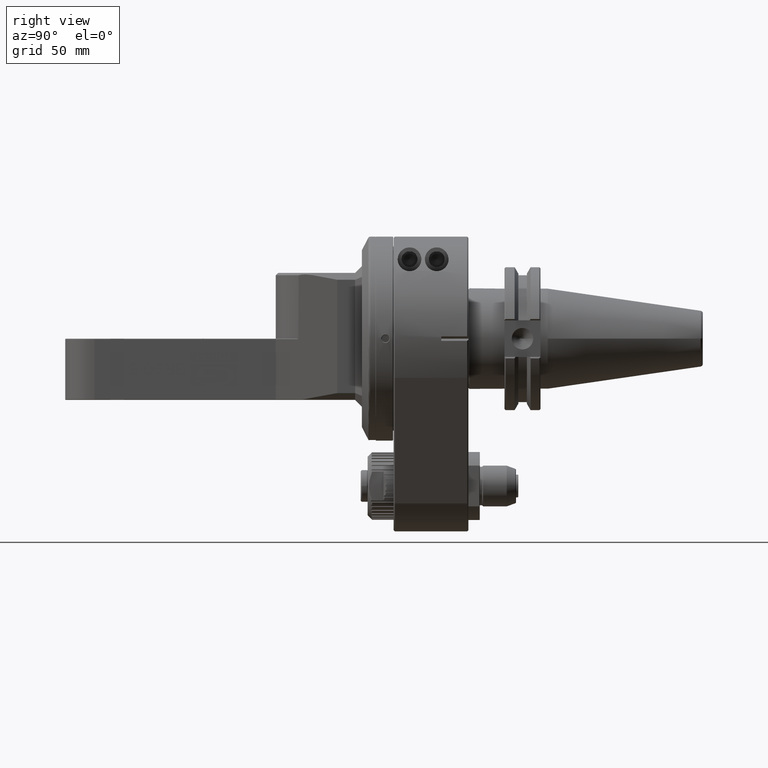
[diagram: clean part render]
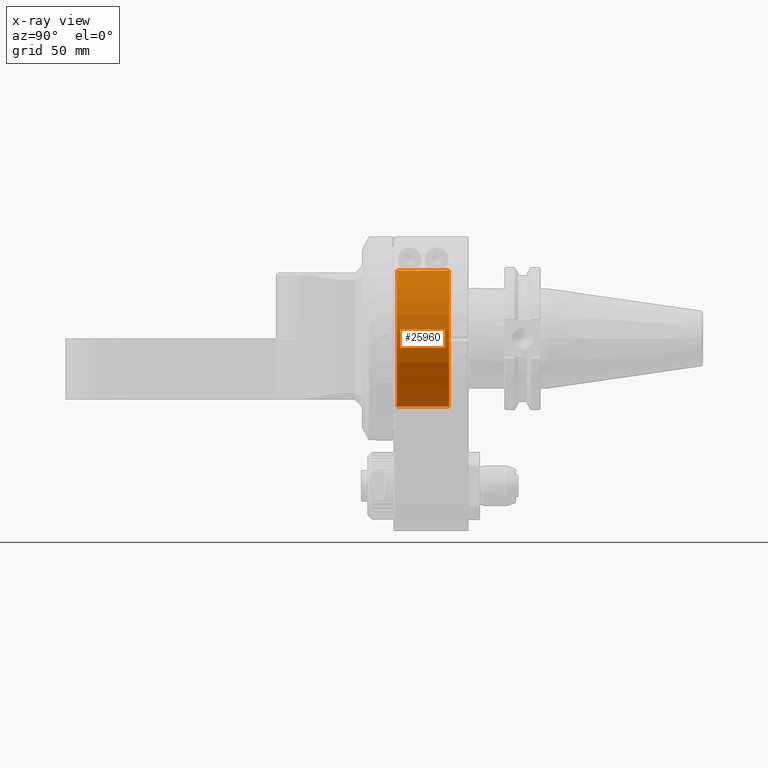
[diagram: x-ray — body ghosted, one internal face saturated and labeled with its STEP entity id]
A machine part, right view, then the same camera in x-ray: the body is ghosted and one INTERNAL B-rep face — a face not visible from any outside direction — is saturated and labeled: STEP entity #25960.
In plain terms, the highlighted cylindrical surface (bore or boss wall) has radius 30 mm, axis along (0, -1, -0).
Its self-contained STEP definition (entity closure, byte-faithful):
#2116=LINE('',#40249,#4495);
#4495=VECTOR('',#31816,1.18110236220472);
#6776=CIRCLE('',#27941,1.18110236220472);
#6778=CIRCLE('',#27943,1.18110236220472);
#6779=CIRCLE('',#27945,1.18110236220472);
#7793=FACE_OUTER_BOUND('',#9381,.T.);
#9381=EDGE_LOOP('',(#19102,#19103,#19104,#19105,#19106));
#11683=VERTEX_POINT('',#40242);
#11684=VERTEX_POINT('',#40243);
#11685=VERTEX_POINT('',#40248);
#14498=EDGE_CURVE('',#11683,#11684,#6776,.T.);
#14500=EDGE_CURVE('',#11684,#11683,#6778,.T.);
#14501=EDGE_CURVE('',#11683,#11685,#2116,.T.);
#14502=EDGE_CURVE('',#11685,#11685,#6779,.T.);
#19102=ORIENTED_EDGE('',*,*,#14498,.F.);
#19103=ORIENTED_EDGE('',*,*,#14501,.T.);
#19104=ORIENTED_EDGE('',*,*,#14502,.F.);
#19105=ORIENTED_EDGE('',*,*,#14501,.F.);
#19106=ORIENTED_EDGE('',*,*,#14500,.F.);
#25472=CYLINDRICAL_SURFACE('',#27944,1.18110236220472);
#25960=ADVANCED_FACE('',(#7793),#25472,.T.);
#27941=AXIS2_PLACEMENT_3D('',#40244,#31808,#31809);
#27943=AXIS2_PLACEMENT_3D('',#40246,#31812,#31813);
#27944=AXIS2_PLACEMENT_3D('',#40247,#31814,#31815);
#27945=AXIS2_PLACEMENT_3D('',#40250,#31817,#31818);
#31808=DIRECTION('center_axis',(0.,1.,0.));
#31809=DIRECTION('ref_axis',(0.,0.,-1.));
#31812=DIRECTION('center_axis',(0.,1.,0.));
#31813=DIRECTION('ref_axis',(0.,0.,-1.));
#31814=DIRECTION('center_axis',(0.,1.,0.));
#31815=DIRECTION('ref_axis',(0.,0.,-1.));
#31816=DIRECTION('',(0.,-1.,0.));
#31817=DIRECTION('center_axis',(0.,-1.,0.));
#31818=DIRECTION('ref_axis',(0.,0.,1.));
#40242=CARTESIAN_POINT('',(0.,0.930471440796063,1.18110236220472));
#40243=CARTESIAN_POINT('',(1.44643322733939E-16,0.930471440796063,-1.18110236220472));
#40244=CARTESIAN_POINT('Origin',(0.,0.930471440796063,-4.70187270514567E-16));
#40246=CARTESIAN_POINT('Origin',(0.,0.930471440796063,-4.70187270514567E-16));
#40247=CARTESIAN_POINT('Origin',(0.,-0.151574803149606,0.));
#40248=CARTESIAN_POINT('',(0.,0.0196844699825512,1.18110236220472));
#40249=CARTESIAN_POINT('',(1.44643322733939E-16,-0.151574803149606,1.18110236220472));
#40250=CARTESIAN_POINT('Origin',(0.,0.0196844699825512,0.));